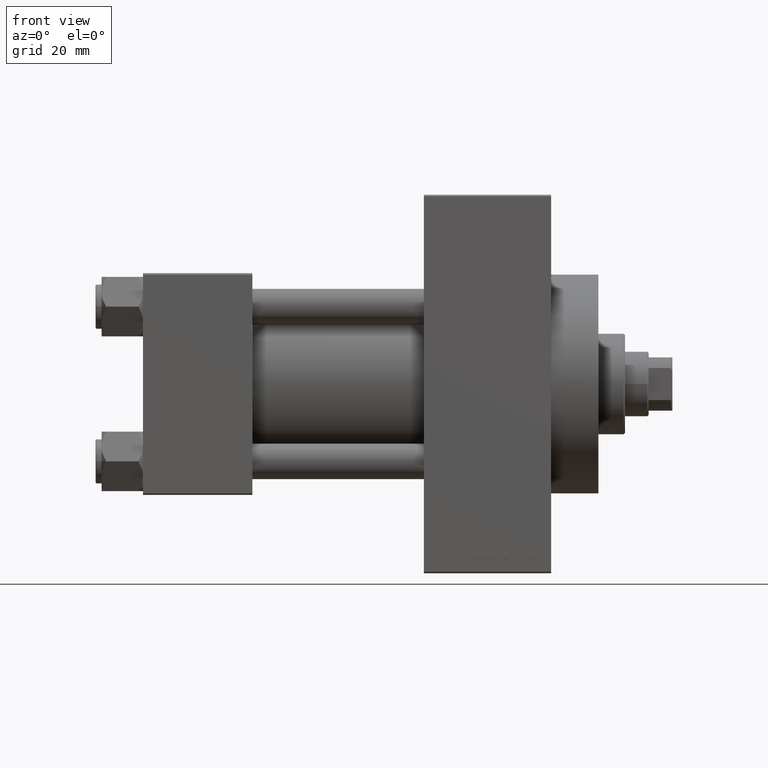
[diagram: clean part render]
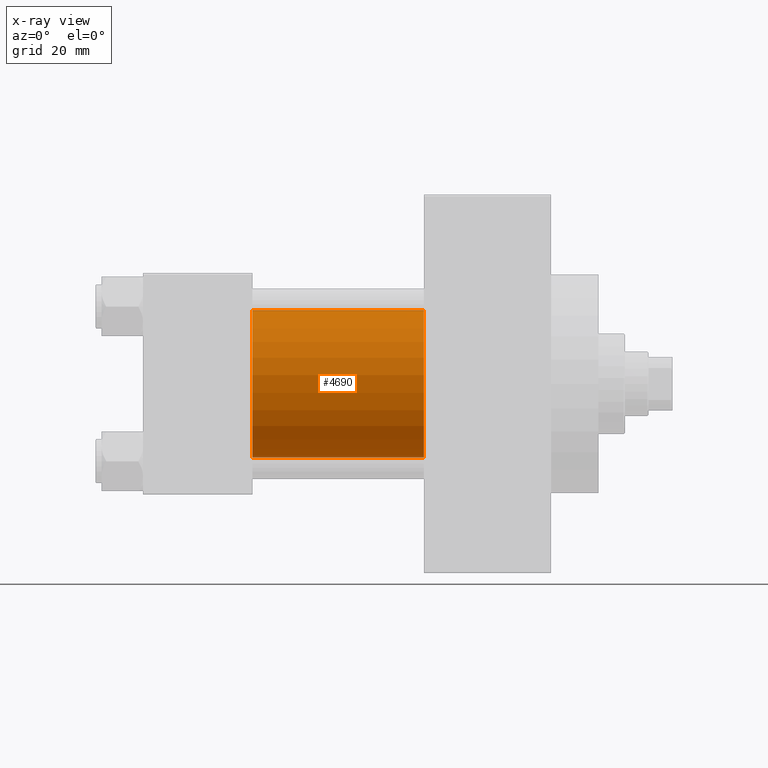
[diagram: x-ray — body ghosted, one internal face saturated and labeled with its STEP entity id]
A machine part, front view, then the same camera in x-ray: the body is ghosted and one INTERNAL B-rep face — a face not visible from any outside direction — is saturated and labeled: STEP entity #4690.
In plain terms, the highlighted cylindrical surface (partial cylindrical patch) has radius 25 mm, axis along (-1, -0, -0).
Its self-contained STEP definition (entity closure, byte-faithful):
#2913 = DIRECTION ( 'NONE',  ( 1.000000000000000000, 0.000000000000000000, 0.000000000000000000 ) ) ;
#3288 = EDGE_CURVE ( 'NONE', #39802, #16574, #26543, .T. ) ;
#3702 = FACE_OUTER_BOUND ( 'NONE', #48233, .T. ) ;
#4690 = ADVANCED_FACE ( 'NONE', ( #3702 ), #19395, .F. ) ;
#5342 = CARTESIAN_POINT ( 'NONE',  ( 95.00000000000000000, 4.595317839031718093E-16, -25.00000000000000000 ) ) ;
#5821 = EDGE_CURVE ( 'NONE', #16574, #25503, #31524, .T. ) ;
#7065 = DIRECTION ( 'NONE',  ( -1.000000000000000000, -0.000000000000000000, -0.000000000000000000 ) ) ;
#8175 = DIRECTION ( 'NONE',  ( 0.000000000000000000, 0.000000000000000000, 1.000000000000000000 ) ) ;
#8200 = CARTESIAN_POINT ( 'NONE',  ( 37.00000000000000000, 4.595317839031718093E-16, -25.00000000000000000 ) ) ;
#8339 = ORIENTED_EDGE ( 'NONE', *, *, #45652, .F. ) ;
#9055 = AXIS2_PLACEMENT_3D ( 'NONE', #34616, #38337, #8175 ) ;
#12136 = DIRECTION ( 'NONE',  ( 1.000000000000000000, 0.000000000000000000, 0.000000000000000000 ) ) ;
#15093 = ORIENTED_EDGE ( 'NONE', *, *, #42678, .F. ) ;
#16126 = CARTESIAN_POINT ( 'NONE',  ( 95.00000000000000000, -2.602085213965210642E-15, 0.000000000000000000 ) ) ;
#16574 = VERTEX_POINT ( 'NONE', #27999 ) ;
#16588 = VECTOR ( 'NONE', #7065, 1000.000000000000000 ) ;
#19395 = CYLINDRICAL_SURFACE ( 'NONE', #9055, 25.00000000000000000 ) ;
#19454 = VECTOR ( 'NONE', #32508, 1000.000000000000000 ) ;
#20590 = AXIS2_PLACEMENT_3D ( 'NONE', #37792, #2913, #37539 ) ;
#21363 = CIRCLE ( 'NONE', #20590, 25.00000000000000000 ) ;
#25503 = VERTEX_POINT ( 'NONE', #8200 ) ;
#26543 = CIRCLE ( 'NONE', #44029, 25.00000000000000000 ) ;
#27175 = VERTEX_POINT ( 'NONE', #32600 ) ;
#27999 = CARTESIAN_POINT ( 'NONE',  ( 95.00000000000000000, 4.595317839031718093E-16, -25.00000000000000000 ) ) ;
#30753 = CARTESIAN_POINT ( 'NONE',  ( 95.00000000000000000, -2.602085213965210642E-15, 25.00000000000000000 ) ) ;
#31524 = LINE ( 'NONE', #5342, #19454 ) ;
#32508 = DIRECTION ( 'NONE',  ( -1.000000000000000000, -0.000000000000000000, -0.000000000000000000 ) ) ;
#32600 = CARTESIAN_POINT ( 'NONE',  ( 37.00000000000000000, -2.602085213965210642E-15, 25.00000000000000000 ) ) ;
#32923 = CARTESIAN_POINT ( 'NONE',  ( 95.00000000000000000, -2.602085213965210642E-15, 25.00000000000000000 ) ) ;
#34616 = CARTESIAN_POINT ( 'NONE',  ( 95.00000000000000000, -2.602085213965210642E-15, 0.000000000000000000 ) ) ;
#35572 = DIRECTION ( 'NONE',  ( 0.000000000000000000, 0.000000000000000000, -1.000000000000000000 ) ) ;
#37539 = DIRECTION ( 'NONE',  ( 0.000000000000000000, 0.000000000000000000, -1.000000000000000000 ) ) ;
#37792 = CARTESIAN_POINT ( 'NONE',  ( 37.00000000000000000, -2.602085213965210642E-15, 0.000000000000000000 ) ) ;
#38337 = DIRECTION ( 'NONE',  ( -1.000000000000000000, -0.000000000000000000, -0.000000000000000000 ) ) ;
#38639 = ORIENTED_EDGE ( 'NONE', *, *, #3288, .T. ) ;
#39802 = VERTEX_POINT ( 'NONE', #32923 ) ;
#42678 = EDGE_CURVE ( 'NONE', #27175, #25503, #21363, .T. ) ;
#43699 = ORIENTED_EDGE ( 'NONE', *, *, #5821, .T. ) ;
#44029 = AXIS2_PLACEMENT_3D ( 'NONE', #16126, #12136, #35572 ) ;
#45652 = EDGE_CURVE ( 'NONE', #39802, #27175, #45946, .T. ) ;
#45946 = LINE ( 'NONE', #30753, #16588 ) ;
#48233 = EDGE_LOOP ( 'NONE', ( #38639, #43699, #15093, #8339 ) ) ;